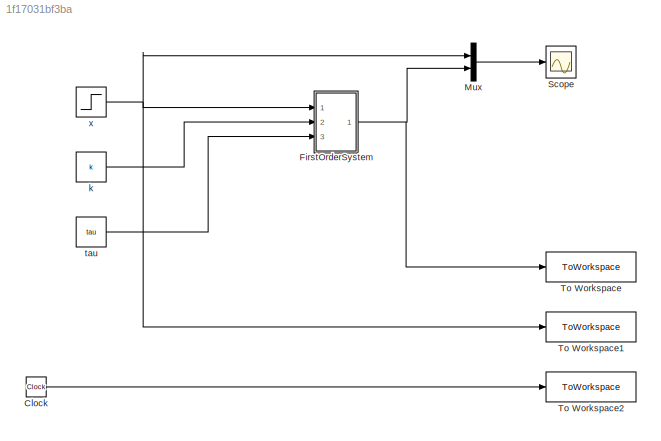
MODEL slx_1f17031bf3ba
KIND model
CONFIG AbsTol = auto
CONFIG EnableMultiTasking = off
CONFIG FixedStep = auto
CONFIG MaxStep = auto
CONFIG MinStep = auto
CONFIG RelTol = 1e-3
CONFIG SampleTimeConstraint = Unconstrained
CONFIG SolverName = VariableStepAuto
CONFIG StartTime = 0.0
CONFIG StopTime = 50
BLOCK [Clock] Clock
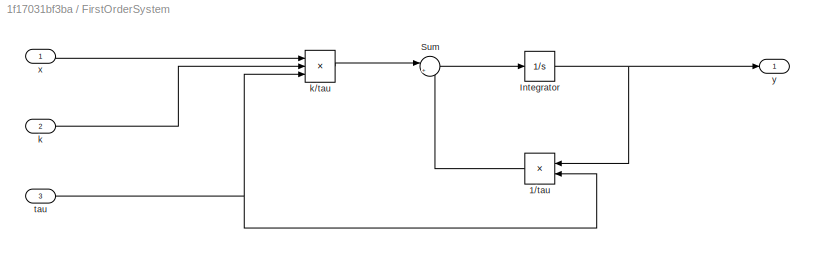
BLOCK [SubSystem] FirstOrderSystem
  Ports = [3, 1]
  RequestExecContextInheritance = off
BLOCK [Product] FirstOrderSystem/1//tau
  Inputs = */
  NameLocation = top
  Ports = [2, 1]
BLOCK [Integrator] FirstOrderSystem/Integrator
  Ports = [1, 1]
BLOCK [Sum] FirstOrderSystem/Sum
  Inputs = |+-
  Ports = [2, 1]
BLOCK [Inport] FirstOrderSystem/k
  Port = 2
BLOCK [Product] FirstOrderSystem/k//tau
  Inputs = **/
  Ports = [3, 1]
BLOCK [Inport] FirstOrderSystem/tau
  Port = 3
BLOCK [Inport] FirstOrderSystem/x
BLOCK [Outport] FirstOrderSystem/y
BLOCK [Mux] Mux
  DisplayOption = bar
  Inputs = 2
  Ports = [2, 1]
BLOCK [Scope] Scope
  Floating = off
  NumInputPorts = 1
  Ports = [1]
  ScopeSpecificationString = Simulink.scopes.TimeScopeBlockCfg('CurrentConfiguration', extmgr.ConfigurationSet(extmgr.Configuration('Core','General UI',true),extmgr.Configuration('Core','Source UI',true),extmgr.Configuration('Sources','WiredSimulink',true),extmgr.Configuration('Visuals','Time Domain',true,'SerializedDisplays',{struct('MinYLimReal','-0.24592','MaxYLimReal','2.21327','YLabelReal','','MinYLimMag','0.00000','MaxY...<+1340ch>
BLOCK [ToWorkspace] To Workspace
  FixptAsFi = on
  MaxDataPoints = inf
  Ports = [1]
  SampleTime = -1
  VariableName = y
BLOCK [ToWorkspace] To Workspace1
  FixptAsFi = on
  MaxDataPoints = inf
  Ports = [1]
  SampleTime = -1
  VariableName = x
BLOCK [ToWorkspace] To Workspace2
  FixptAsFi = on
  MaxDataPoints = inf
  Ports = [1]
  SampleTime = -1
  VariableName = time
BLOCK [Constant] k
  Value = k
BLOCK [Constant] tau
  Value = tau
BLOCK [Step] x
  SampleTime = 0
  Time = delay
LINE Clock:1 -> To Workspace2:1
LINE FirstOrderSystem/1//tau:1 -> FirstOrderSystem/Sum:2
NET FirstOrderSystem/Integrator:1 -> FirstOrderSystem/1//tau:1, FirstOrderSystem/y:1
LINE FirstOrderSystem/Sum:1 -> FirstOrderSystem/Integrator:1
LINE FirstOrderSystem/k//tau:1 -> FirstOrderSystem/Sum:1
LINE FirstOrderSystem/k:1 -> FirstOrderSystem/k//tau:2
NET FirstOrderSystem/tau:1 -> FirstOrderSystem/1//tau:2, FirstOrderSystem/k//tau:3
LINE FirstOrderSystem/x:1 -> FirstOrderSystem/k//tau:1
NET FirstOrderSystem:1 -> Mux:2, To Workspace:1
LINE Mux:1 -> Scope:1
LINE k:1 -> FirstOrderSystem:2
LINE tau:1 -> FirstOrderSystem:3
NET x:1 -> FirstOrderSystem:1, Mux:1, To Workspace1:1
note: NET lines group one-source signal fan-out (src -> all destinations, sorted); 1:1 wires keep LINE
